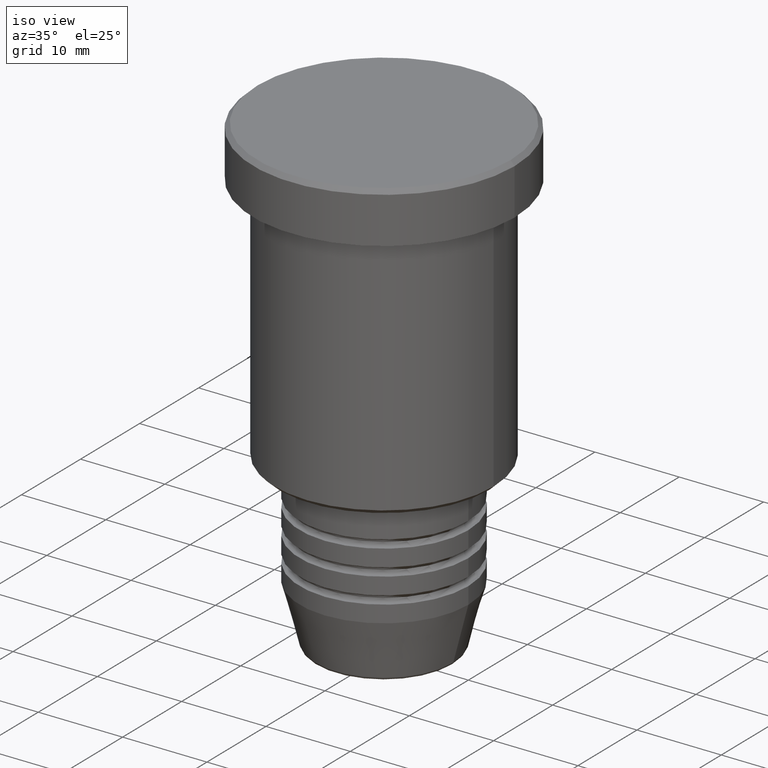
[diagram: clean part render]
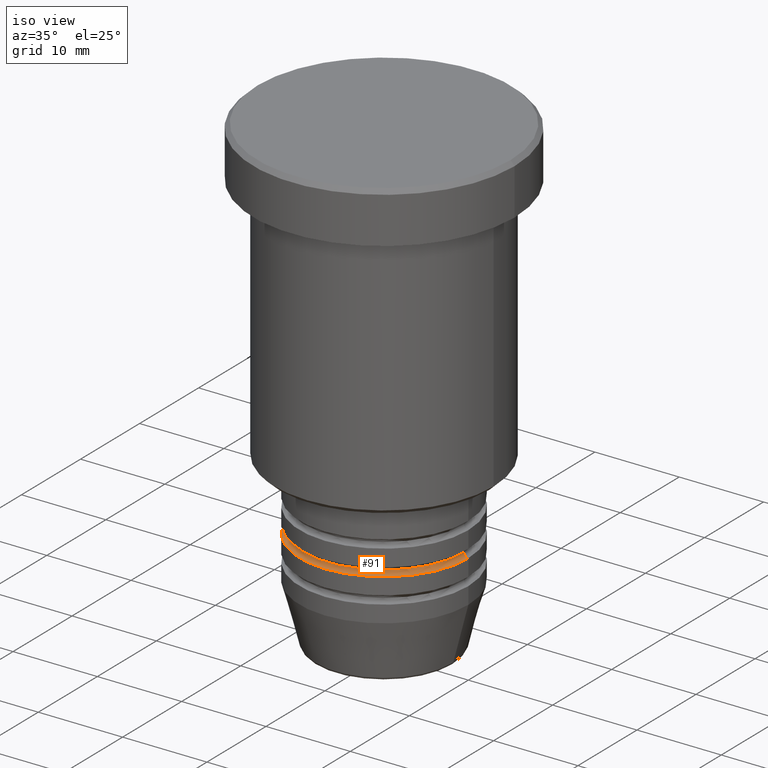
[diagram: same view with one face highlighted and labeled with its STEP entity id]
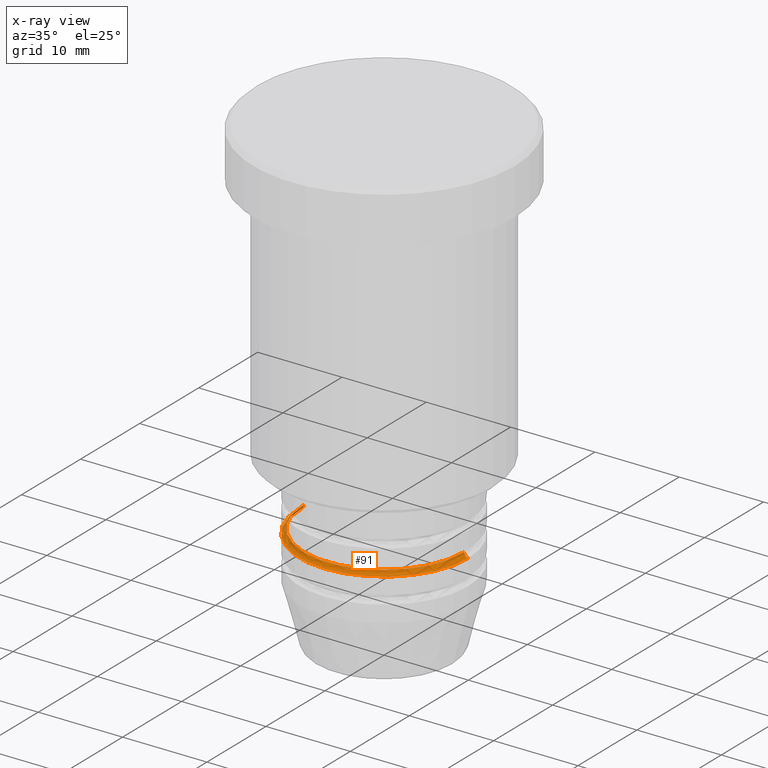
[diagram: x-ray of the same camera — body ghosted, the highlighted face saturated]
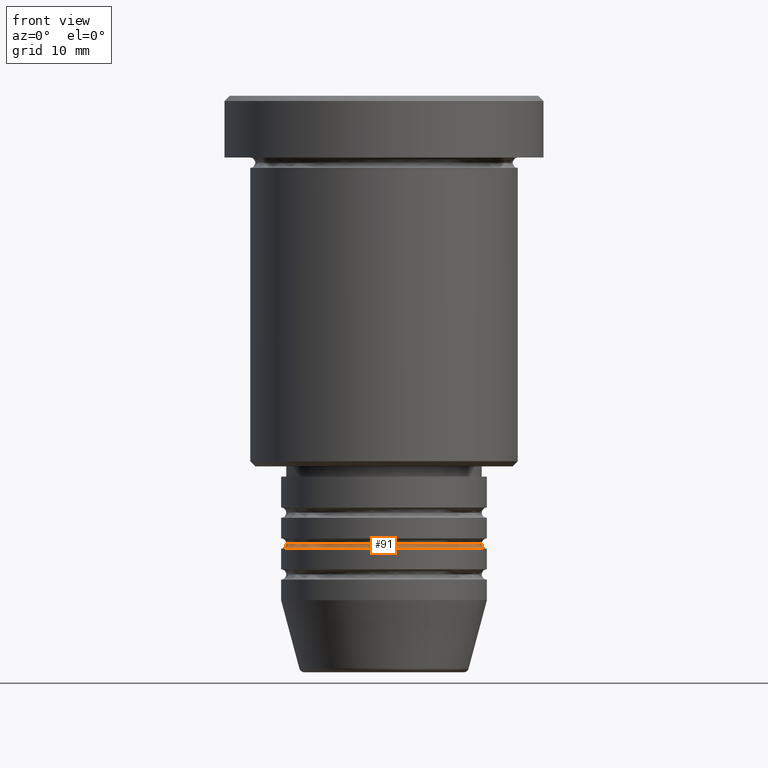
[diagram: same view with one face highlighted and labeled with its STEP entity id]
A machine part, iso view. The second image highlights one B-rep face of the part: STEP entity #91.
The next image is the same camera in x-ray: the body ghosted, the highlighted face saturated — about 2% of this face is hidden behind the body in this view.
A second angle (front view) of the same face is appended — the face is thin or edge-on in the first view.
In plain terms, the highlighted toroidal blend (fillet) surface has major radius 10 mm and minor (blend) radius 0.5 mm.
Its self-contained STEP definition (entity closure, byte-faithful):
#8 = ORIENTED_EDGE ( 'NONE', *, *, #913, .T. ) ;
#24 = DIRECTION ( 'NONE',  ( 1.224646799147353207E-16, 1.000000000000000000, 0.000000000000000000 ) ) ;
#64 = VERTEX_POINT ( 'NONE', #249 ) ;
#91 = ADVANCED_FACE ( 'NONE', ( #448 ), #304, .F. ) ;
#108 = ORIENTED_EDGE ( 'NONE', *, *, #632, .F. ) ;
#127 = VERTEX_POINT ( 'NONE', #1009 ) ;
#133 = CARTESIAN_POINT ( 'NONE',  ( 10.00000000000000178, 0.000000000000000000, -43.49999999999998579 ) ) ;
#197 = AXIS2_PLACEMENT_3D ( 'NONE', #218, #451, #817 ) ;
#215 = VERTEX_POINT ( 'NONE', #731 ) ;
#218 = CARTESIAN_POINT ( 'NONE',  ( 0.000000000000000000, 0.000000000000000000, -43.99999999999998579 ) ) ;
#237 = DIRECTION ( 'NONE',  ( -0.000000000000000000, -0.000000000000000000, 1.000000000000000000 ) ) ;
#249 = CARTESIAN_POINT ( 'NONE',  ( -9.500000000000001776, 1.194030629168669469E-15, -43.49999999999998579 ) ) ;
#298 = CIRCLE ( 'NONE', #314, 0.5000000000000004441 ) ;
#304 = TOROIDAL_SURFACE ( 'NONE', #978, 10.00000000000000178, 0.5000000000000000000 ) ;
#310 = ORIENTED_EDGE ( 'NONE', *, *, #474, .F. ) ;
#314 = AXIS2_PLACEMENT_3D ( 'NONE', #473, #24, #389 ) ;
#323 = AXIS2_PLACEMENT_3D ( 'NONE', #133, #501, #864 ) ;
#379 = CARTESIAN_POINT ( 'NONE',  ( -10.00000000000000000, 1.224646799147353256E-15, -43.99999999999998579 ) ) ;
#389 = DIRECTION ( 'NONE',  ( -1.000000000000000000, 1.224646799147353454E-16, 0.000000000000000000 ) ) ;
#425 = CIRCLE ( 'NONE', #197, 10.00000000000000000 ) ;
#448 = FACE_OUTER_BOUND ( 'NONE', #743, .T. ) ;
#451 = DIRECTION ( 'NONE',  ( -0.000000000000000000, -0.000000000000000000, 1.000000000000000000 ) ) ;
#469 = ORIENTED_EDGE ( 'NONE', *, *, #1138, .T. ) ;
#473 = CARTESIAN_POINT ( 'NONE',  ( -10.00000000000000178, 1.224646799147353454E-15, -43.49999999999998579 ) ) ;
#474 = EDGE_CURVE ( 'NONE', #64, #215, #1088, .T. ) ;
#501 = DIRECTION ( 'NONE',  ( 0.000000000000000000, -1.000000000000000000, 0.000000000000000000 ) ) ;
#508 = DIRECTION ( 'NONE',  ( -0.000000000000000000, -0.000000000000000000, 1.000000000000000000 ) ) ;
#510 = DIRECTION ( 'NONE',  ( 1.000000000000000000, 0.000000000000000000, 0.000000000000000000 ) ) ;
#632 = EDGE_CURVE ( 'NONE', #215, #127, #845, .T. ) ;
#731 = CARTESIAN_POINT ( 'NONE',  ( 9.500000000000001776, 0.000000000000000000, -43.49999999999998579 ) ) ;
#743 = EDGE_LOOP ( 'NONE', ( #310, #8, #469, #108 ) ) ;
#817 = DIRECTION ( 'NONE',  ( 1.000000000000000000, 0.000000000000000000, 0.000000000000000000 ) ) ;
#831 = VERTEX_POINT ( 'NONE', #379 ) ;
#845 = CIRCLE ( 'NONE', #323, 0.5000000000000004441 ) ;
#864 = DIRECTION ( 'NONE',  ( 0.000000000000000000, 0.000000000000000000, -1.000000000000000000 ) ) ;
#913 = EDGE_CURVE ( 'NONE', #64, #831, #298, .T. ) ;
#978 = AXIS2_PLACEMENT_3D ( 'NONE', #1176, #508, #983 ) ;
#983 = DIRECTION ( 'NONE',  ( 1.000000000000000000, 0.000000000000000000, 0.000000000000000000 ) ) ;
#1009 = CARTESIAN_POINT ( 'NONE',  ( 10.00000000000000000, 0.000000000000000000, -43.99999999999998579 ) ) ;
#1050 = AXIS2_PLACEMENT_3D ( 'NONE', #1149, #237, #510 ) ;
#1088 = CIRCLE ( 'NONE', #1050, 9.500000000000001776 ) ;
#1138 = EDGE_CURVE ( 'NONE', #831, #127, #425, .T. ) ;
#1149 = CARTESIAN_POINT ( 'NONE',  ( 0.000000000000000000, 0.000000000000000000, -43.49999999999998579 ) ) ;
#1176 = CARTESIAN_POINT ( 'NONE',  ( 0.000000000000000000, 0.000000000000000000, -43.49999999999998579 ) ) ;